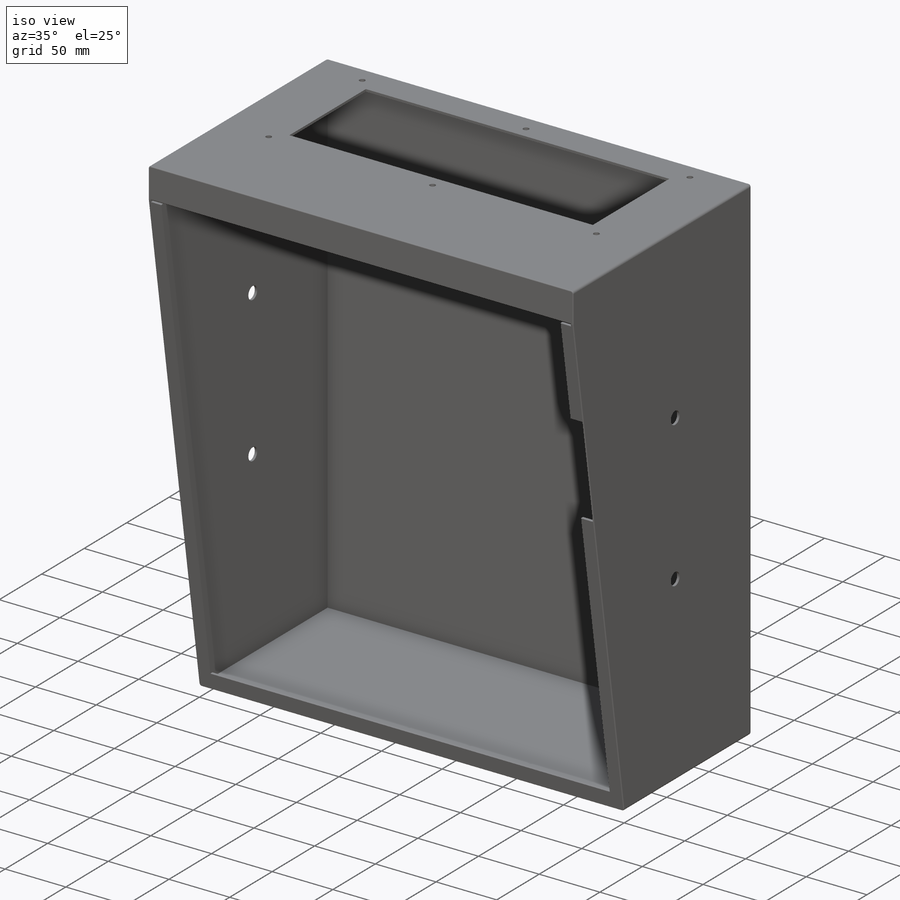
[diagram: iso view]
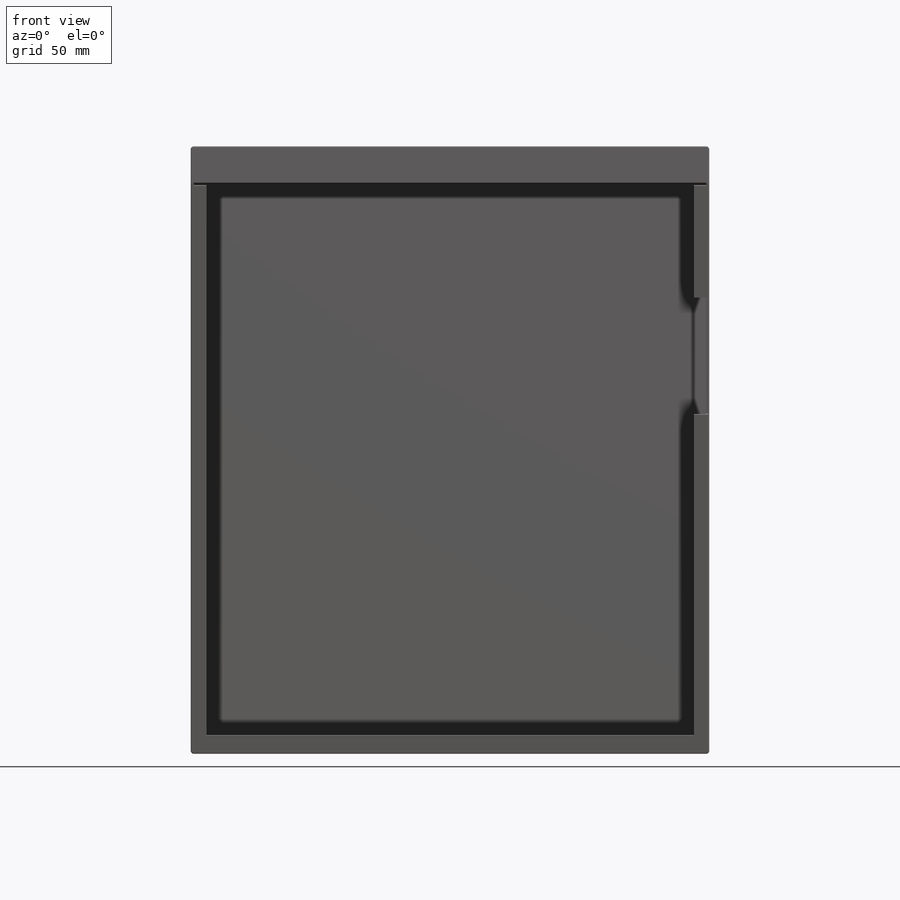
[diagram: front view]
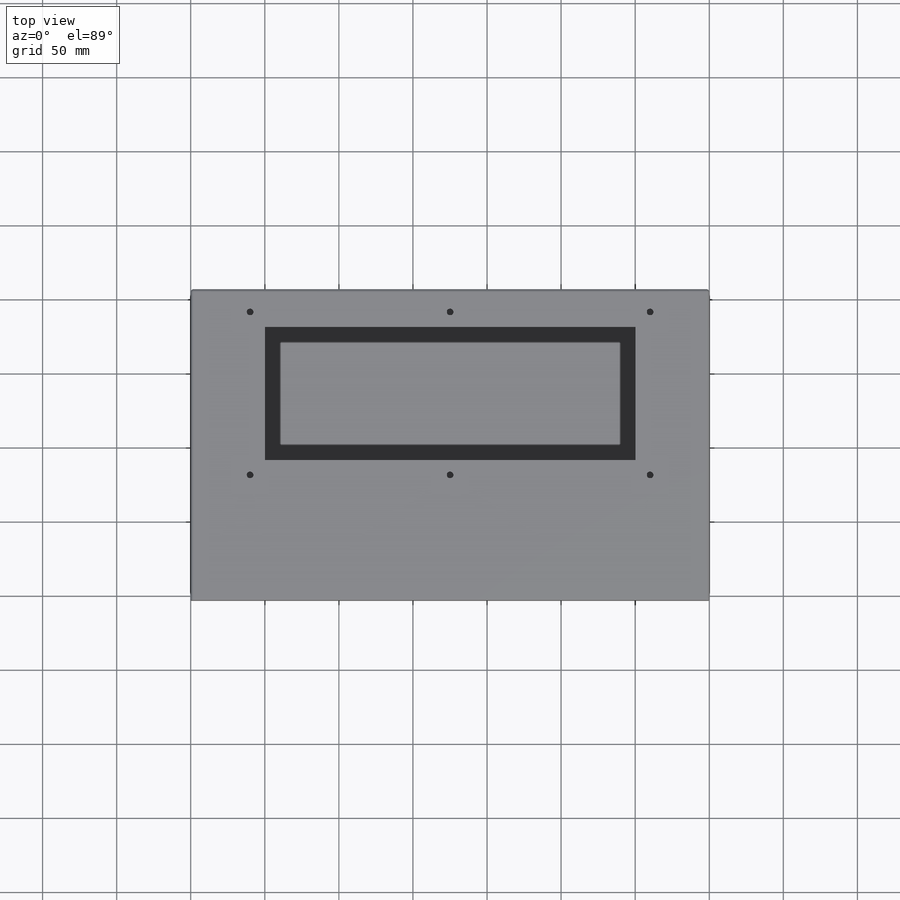
[diagram: top view]
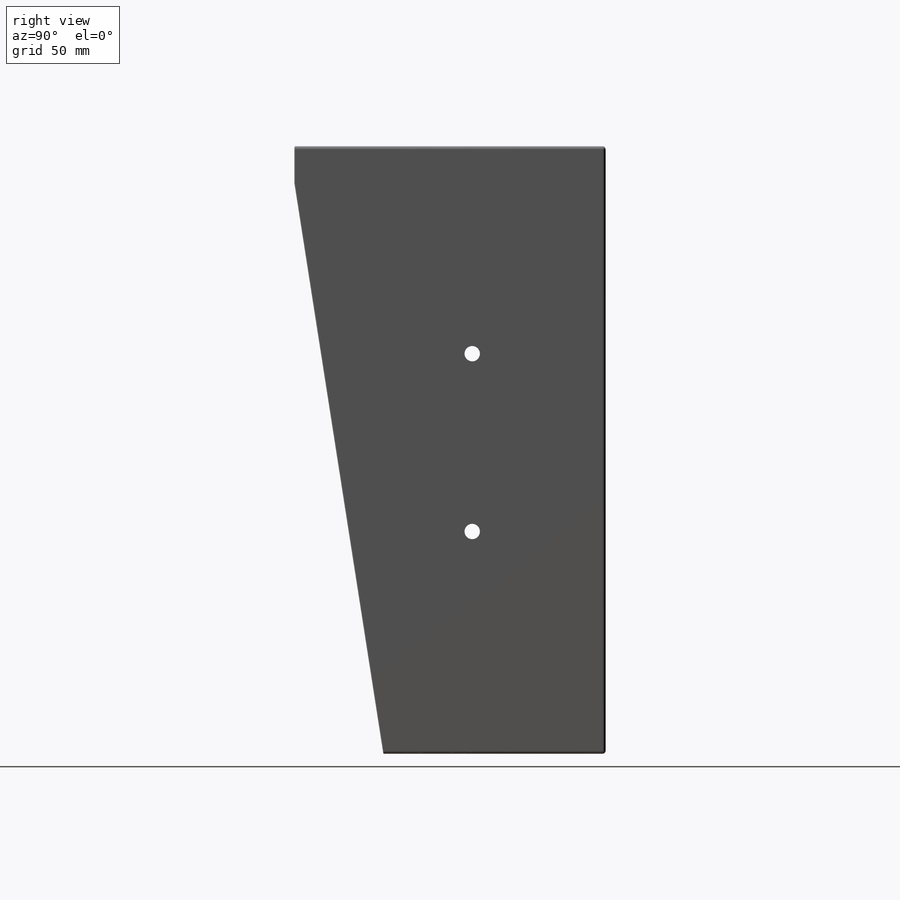
[diagram: right view]
SOLIDWORKS PART (.sldprt)
format: sldprt  version: not decoded by parser v0  size: 380,928 bytes
history: native  units: mm
features: sketch x11, extrude x4, plane x3, cut_extrude x3, fillet x3, hole x2, material x1, shell x1 (+9 scaffold rows collapsed)
feature tree (37):
  scaffold x9  (default folders/planes/origin — collapsed)
  material  "Material <nicht festgelegt>"
  plane  "Vorne"
  plane  "Oben"
  plane  "Links"
  sketch  "Skizze1"  dims[c1.D1=~77.560771mm c1.D2=~97.818146mm c2.D1=350.0mm c2.D2=410.0mm]
  extrude  "Aufsatz-Linear austragen2"  Depth=210mm
  sketch  "Skizze2"  dims[D1=150.0mm D2=25.0mm]
  cut_extrude  "Schnitt-Linear austragen1"  [1 undecoded]
  shell  "Wandung1"  Thickness=2mm
  sketch  "Skizze6"  dims[c1.D1=23.0mm c1.D2=346.0mm c2.D1=21.0mm]
  extrude  "Aufsatz-Linear austragen3"  Depth=2mm
  sketch  "Skizze9"  dims[c1.D1=~13.68702mm c1.D2=346.0mm c2.D1=18.0mm]
  extrude  "Aufsatz-Linear austragen7"  Depth=1.999mm
  fillet  "Verrundung5"  Radius=0.7366mm
  sketch  "Skizze8"  dims[D1=388.0mm D2=10.5mm D3=12.5mm D4=10.5mm]
  extrude  "Aufsatz-Linear austragen5"  Depth=2mm
  fillet  "Verrundung2"  Radius=2mm
  fillet  "Verrundung3"  Radius=0.7366mm
  sketch  "Skizze10"  dims[c1.D1=~101.65189mm c1.D2=9.7634mm c2.D1=231.0mm c2.D2=80.0mm]
  cut_extrude  "Schnitt-Linear austragen2"  Depth=5mm
  sketch  "Skizze11"  dims[c1.D1=~113.555132mm c1.D2=~281.184137mm c2.D1=~24.719485mm c2.D2=~9.656049mm c3.D1=250.0mm c3.D2=90.0mm c3.D3=25.5mm]
  cut_extrude  "Schnitt-Linear austragen3"  Depth=5mm
  hole  "Bohrung1"  Diameter=10.4mm Depth=5500mm
  sketch  "Skizze13"  dims[D1=120.0mm D2=140.0mm D3=90.0mm]
  sketch  "Skizze12"  dims[Durchmesser=10.4mm Tiefe=5500.0mm]
  hole  "Ø4.5 (4.5) Durchmesser Bohrung1"  Diameter=4.5mm Depth=10mm
  sketch  "Skizze15"  dims[D1=110.0mm D2=135.0mm]
  sketch  "Skizze14"  dims[c1.D1=25.4mm c1.D2=93.98mm c1.4=25.4mm c1.D4=19.05mm c1.D7=33.02mm c1.D5=25.4mm c1.D3=50.8mm c1.D6=31.75mm c2.D5=58.42mm c2.D7=~8.980256mm c3.D7=90.0deg c3.D6=~2059.488517mm c3.D8=~2059.488517mm c3.D9=~2059.488517mm c3.D3=50.8mm c3.D4=31.75mm c3.D5=58.42mm c4.D6=~2094.395102mm c4.D7=33.02mm c4.D8=~1570.796327mm c4.D9=~2059.488517mm c4.D1=12.7mm c4.D2=93.98mm c4.D3=25.4mm c5.D1=25.4mm c5.D2=93.98mm c5.D3=50.8mm c5.D4=~1431.169987mm c5.D5=~2059.488517mm c5.D6=12.7mm c6.D1=25.4mm c6.D2=93.98mm c6.D3=31.75mm c6.D4=~2094.395102mm c6.D5=~2059.488517mm c6.Bohrerdurchmesser=4.5mm c6.Bohrungstiefe=10.0mm c6.Spitzenwinkel=~2059.488517mm c7.D1=10.0mm c7.D2=0.5 c7.D3=0.0deg c7.D6=~28.64789deg]
decode coverage: 23 of 24 modeling features carry decoded parameters
note: ~ marks probable driven/reference dimensions
note: 1 parameter value undecoded
note: suppression state not decoded; provenance and decode notes live in map.json
